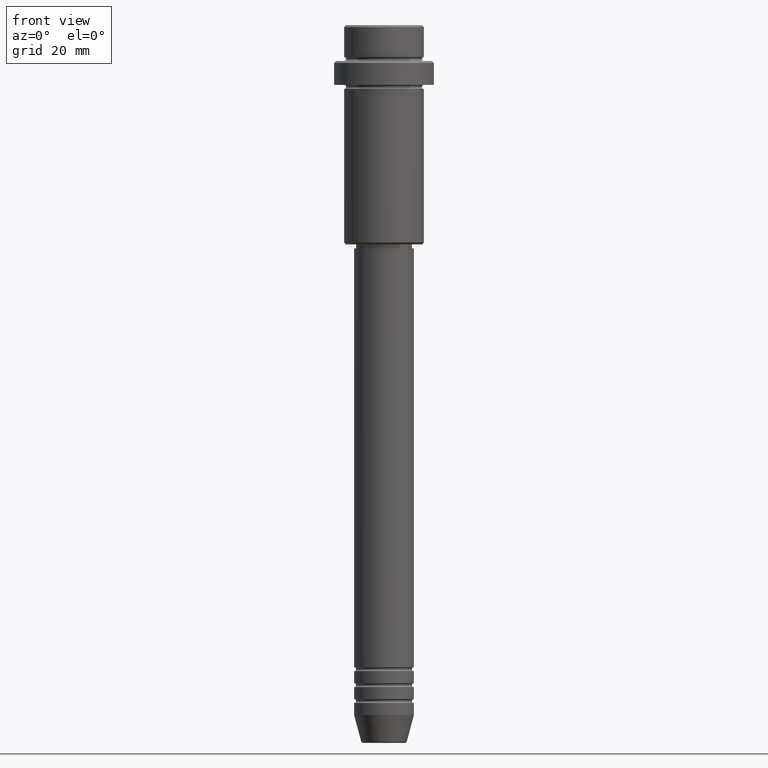
[diagram: clean part render]
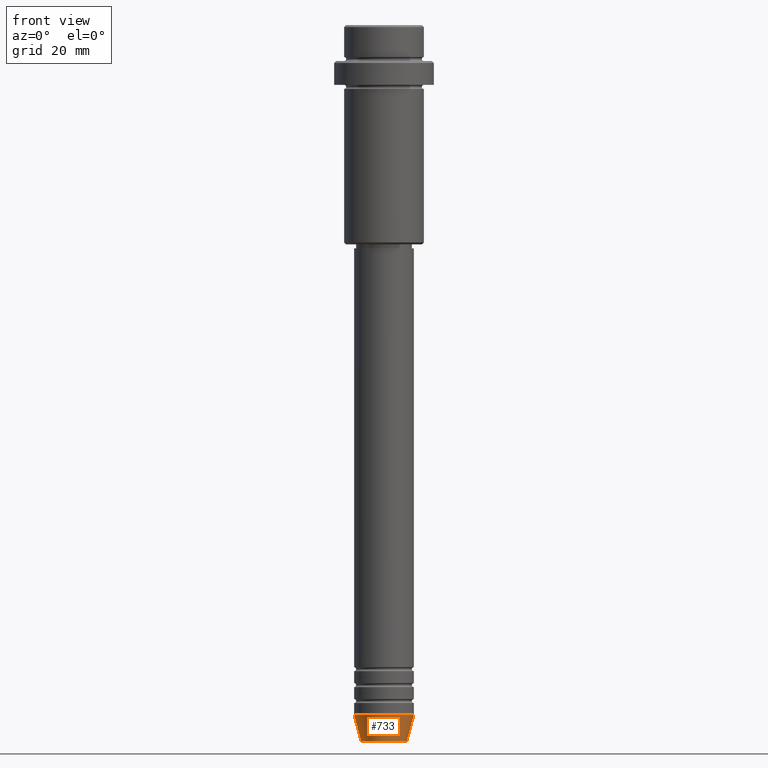
[diagram: same view with one face highlighted and labeled with its STEP entity id]
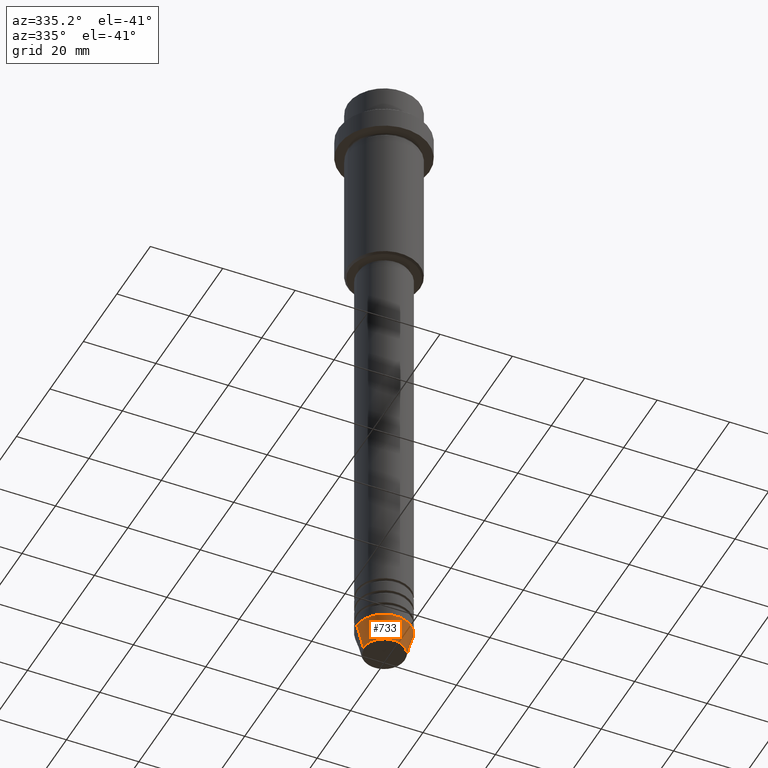
[diagram: same view with one face highlighted and labeled with its STEP entity id]
A machine part, front view. The second image highlights one B-rep face of the part: STEP entity #733.
A second angle (auxiliary view) of the same face is appended — the face is thin or edge-on in the first view.
In plain terms, the highlighted conical surface has half-angle 15 deg.
Its self-contained STEP definition (entity closure, byte-faithful):
#4 = CARTESIAN_POINT ( 'NONE',  ( 0.000000000000000000, 0.000000000000000000, -173.0000000000000000 ) ) ;
#48 = EDGE_CURVE ( 'NONE', #1256, #392, #303, .T. ) ;
#52 = CARTESIAN_POINT ( 'NONE',  ( -7.500000000000000000, 9.184850993605147944E-16, -173.0000000000000000 ) ) ;
#69 = EDGE_CURVE ( 'NONE', #670, #342, #175, .T. ) ;
#104 = CARTESIAN_POINT ( 'NONE',  ( 5.723655072137191269, 0.000000000000000000, -179.6294095225512422 ) ) ;
#150 = DIRECTION ( 'NONE',  ( -0.000000000000000000, -0.000000000000000000, 1.000000000000000000 ) ) ;
#175 = LINE ( 'NONE', #1293, #849 ) ;
#231 = CARTESIAN_POINT ( 'NONE',  ( -5.723655072137191269, 8.097153428560735915E-16, -179.6294095225512422 ) ) ;
#262 = ORIENTED_EDGE ( 'NONE', *, *, #69, .T. ) ;
#264 = CARTESIAN_POINT ( 'NONE',  ( 7.500000000000000000, 0.000000000000000000, -173.0000000000000000 ) ) ;
#286 = AXIS2_PLACEMENT_3D ( 'NONE', #306, #1180, #634 ) ;
#303 = LINE ( 'NONE', #1148, #772 ) ;
#306 = CARTESIAN_POINT ( 'NONE',  ( 0.000000000000000000, 0.000000000000000000, -179.6294095225512422 ) ) ;
#309 = AXIS2_PLACEMENT_3D ( 'NONE', #4, #740, #526 ) ;
#311 = CIRCLE ( 'NONE', #286, 5.723655072137191269 ) ;
#342 = VERTEX_POINT ( 'NONE', #264 ) ;
#344 = CIRCLE ( 'NONE', #1137, 7.500000000000000000 ) ;
#363 = EDGE_CURVE ( 'NONE', #392, #342, #344, .T. ) ;
#378 = CARTESIAN_POINT ( 'NONE',  ( 0.000000000000000000, 0.000000000000000000, -173.0000000000000000 ) ) ;
#392 = VERTEX_POINT ( 'NONE', #52 ) ;
#429 = FACE_OUTER_BOUND ( 'NONE', #1258, .T. ) ;
#470 = DIRECTION ( 'NONE',  ( 1.000000000000000000, 0.000000000000000000, 0.000000000000000000 ) ) ;
#526 = DIRECTION ( 'NONE',  ( 1.000000000000000000, 0.000000000000000000, 0.000000000000000000 ) ) ;
#590 = ORIENTED_EDGE ( 'NONE', *, *, #1208, .T. ) ;
#634 = DIRECTION ( 'NONE',  ( 1.000000000000000000, 0.000000000000000000, 0.000000000000000000 ) ) ;
#642 = ORIENTED_EDGE ( 'NONE', *, *, #363, .F. ) ;
#670 = VERTEX_POINT ( 'NONE', #104 ) ;
#733 = ADVANCED_FACE ( 'NONE', ( #429 ), #1196, .T. ) ;
#740 = DIRECTION ( 'NONE',  ( -0.000000000000000000, -0.000000000000000000, 1.000000000000000000 ) ) ;
#772 = VECTOR ( 'NONE', #1285, 1000.000000000000000 ) ;
#849 = VECTOR ( 'NONE', #943, 1000.000000000000000 ) ;
#858 = ORIENTED_EDGE ( 'NONE', *, *, #48, .F. ) ;
#943 = DIRECTION ( 'NONE',  ( 0.2588190451025213501, 0.000000000000000000, 0.9659258262890680902 ) ) ;
#1137 = AXIS2_PLACEMENT_3D ( 'NONE', #378, #150, #470 ) ;
#1148 = CARTESIAN_POINT ( 'NONE',  ( -7.500000000000000000, 9.184850993605147944E-16, -173.0000000000000000 ) ) ;
#1180 = DIRECTION ( 'NONE',  ( -0.000000000000000000, -0.000000000000000000, 1.000000000000000000 ) ) ;
#1196 = CONICAL_SURFACE ( 'NONE', #309, 7.500000000000000000, 0.2617993877991500740 ) ;
#1208 = EDGE_CURVE ( 'NONE', #1256, #670, #311, .T. ) ;
#1256 = VERTEX_POINT ( 'NONE', #231 ) ;
#1258 = EDGE_LOOP ( 'NONE', ( #858, #590, #262, #642 ) ) ;
#1285 = DIRECTION ( 'NONE',  ( -0.2588190451025213501, 3.169619151431772337E-17, 0.9659258262890680902 ) ) ;
#1293 = CARTESIAN_POINT ( 'NONE',  ( 7.500000000000000000, 0.000000000000000000, -173.0000000000000000 ) ) ;